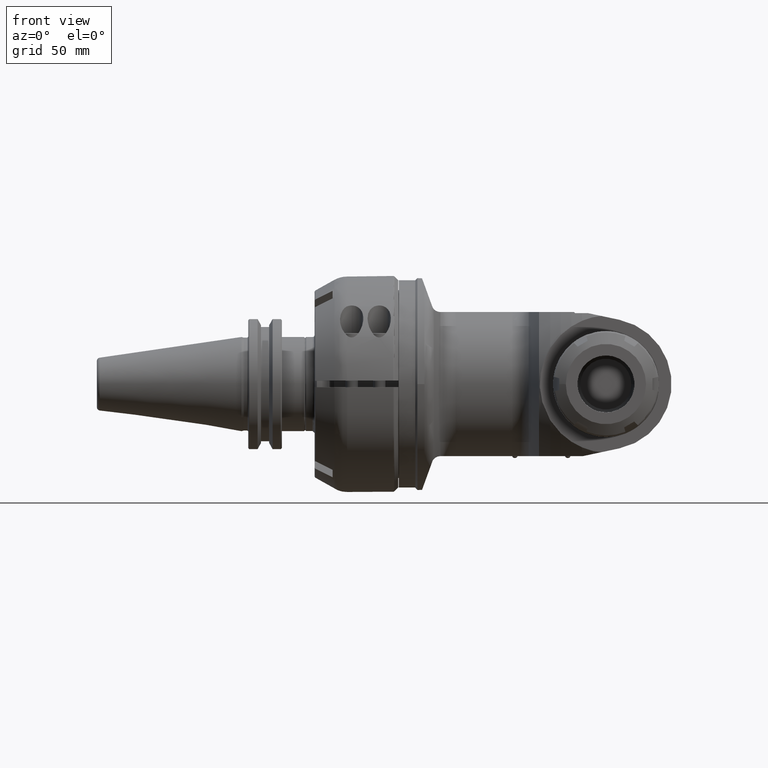
[diagram: clean part render]
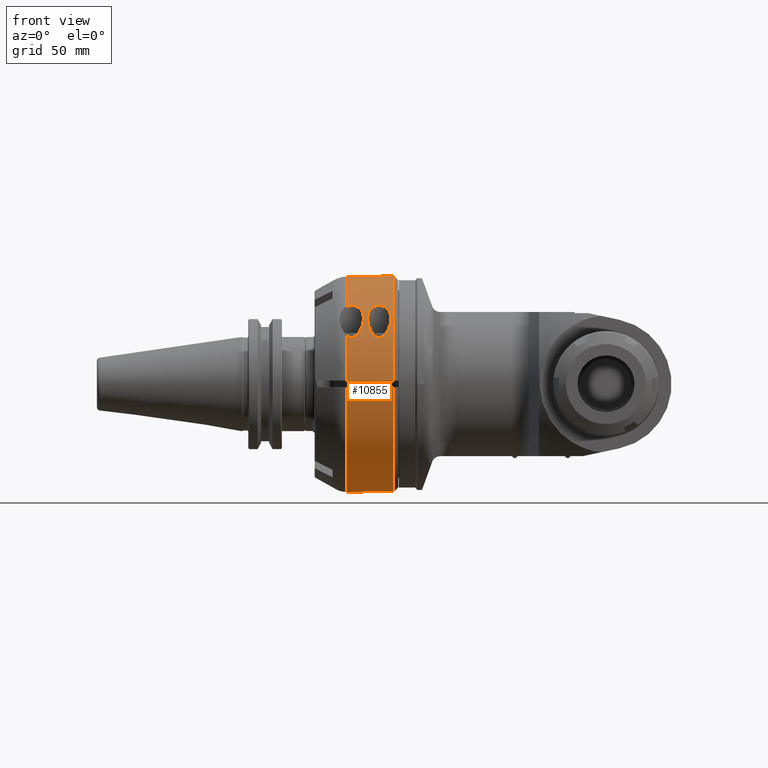
[diagram: same view with one face highlighted and labeled with its STEP entity id]
A machine part, front view. The second image highlights one B-rep face of the part: STEP entity #10855.
In plain terms, the highlighted cylindrical surface (partial cylindrical patch) has radius 51 mm, axis along (1, 0, 0).
Its self-contained STEP definition (entity closure, byte-faithful):
#51=B_SPLINE_CURVE_WITH_KNOTS('',3,(#16694,#16695,#16696,#16697,#16698,
#16699),.UNSPECIFIED.,.F.,.F.,(4,2,4),(-0.220144328878826,-0.201175489980687,
0.),.UNSPECIFIED.);
#52=B_SPLINE_CURVE_WITH_KNOTS('',3,(#16701,#16702,#16703,#16704,#16705,
#16706,#16707,#16708,#16709,#16710,#16711,#16712,#16713,#16714,#16715,#16716,
#16717,#16718,#16719,#16720,#16721,#16722,#16723,#16724,#16725,#16726),
 .UNSPECIFIED.,.F.,.F.,(4,2,2,2,2,2,2,2,2,2,2,2,4),(0.,0.201175489980686,
0.402350979961373,0.726790310303928,1.05122964064648,1.4474368744455,1.84364410824452,
2.06341028648597,2.17329337560669,2.28317646472742,2.39305955384814,2.50294264296886,
2.52975105248747),.UNSPECIFIED.);
#53=B_SPLINE_CURVE_WITH_KNOTS('',3,(#16737,#16738,#16739,#16740,#16741,
#16742,#16743,#16744,#16745,#16746,#16747,#16748,#16749,#16750,#16751,#16752,
#16753,#16754,#16755,#16756,#16757,#16758,#16759,#16760,#16761,#16762,#16763,
#16764,#16765,#16766,#16767,#16768,#16769,#16770,#16771,#16772,#16773,#16774),
 .UNSPECIFIED.,.T.,.F.,(4,2,2,2,2,2,2,2,2,2,2,2,2,2,2,2,2,2,4),(-4.56635292945483,
-4.45646984033411,-4.34658675121339,-4.12682057297194,-3.73061333917292,
-3.3344061053739,-3.00996677503134,-2.68552744468879,-2.4843519547081,-2.28317646472742,
-2.08200097474673,-1.88082548476604,-1.55638615442349,-1.23194682408093,
-0.835739590281914,-0.439532356482894,-0.219766178241447,-0.109883089120723,
0.),.UNSPECIFIED.);
#303=ELLIPSE('',#11620,144.249783362042,51.);
#304=ELLIPSE('',#11621,144.249783362042,51.);
#634=LINE('',#16377,#1308);
#644=LINE('',#16447,#1318);
#660=LINE('',#16627,#1334);
#661=LINE('',#16688,#1335);
#662=LINE('',#16690,#1336);
#663=LINE('',#16735,#1337);
#1308=VECTOR('',#12980,21.74606325158);
#1318=VECTOR('',#13028,21.74606856517);
#1334=VECTOR('',#13100,18.52539489666);
#1335=VECTOR('',#13113,0.6348591411298);
#1336=VECTOR('',#13114,18.52539489666);
#1337=VECTOR('',#13127,0.6348591411298);
#1959=CYLINDRICAL_SURFACE('',#11613,51.);
#2182=FACE_BOUND('',#2969,.T.);
#2290=FACE_OUTER_BOUND('',#2968,.T.);
#2968=EDGE_LOOP('',(#7325,#7326,#7327,#7328,#7329,#7330,#7331,#7332,#7333,
#7334,#7335,#7336,#7337,#7338,#7339,#7340,#7341,#7342));
#2969=EDGE_LOOP('',(#7343));
#3742=CIRCLE('',#11612,51.);
#3743=CIRCLE('',#11614,51.);
#3744=CIRCLE('',#11615,51.);
#3745=CIRCLE('',#11616,51.);
#3746=CIRCLE('',#11617,51.);
#3747=CIRCLE('',#11618,51.);
#3748=CIRCLE('',#11619,51.);
#3749=CIRCLE('',#11622,51.);
#4349=VERTEX_POINT('',#16367);
#4350=VERTEX_POINT('',#16376);
#4368=VERTEX_POINT('',#16437);
#4369=VERTEX_POINT('',#16446);
#4403=VERTEX_POINT('',#16624);
#4404=VERTEX_POINT('',#16626);
#4405=VERTEX_POINT('',#16680);
#4406=VERTEX_POINT('',#16681);
#4407=VERTEX_POINT('',#16683);
#4408=VERTEX_POINT('',#16685);
#4409=VERTEX_POINT('',#16687);
#4410=VERTEX_POINT('',#16689);
#4411=VERTEX_POINT('',#16691);
#4412=VERTEX_POINT('',#16693);
#4413=VERTEX_POINT('',#16700);
#4414=VERTEX_POINT('',#16728);
#4415=VERTEX_POINT('',#16730);
#4416=VERTEX_POINT('',#16732);
#4417=VERTEX_POINT('',#16736);
#5477=EDGE_CURVE('',#4350,#4349,#634,.T.);
#5504=EDGE_CURVE('',#4369,#4368,#644,.T.);
#5547=EDGE_CURVE('',#4404,#4403,#660,.T.);
#5549=EDGE_CURVE('',#4404,#4349,#3742,.T.);
#5550=EDGE_CURVE('',#4405,#4406,#3743,.T.);
#5551=EDGE_CURVE('',#4407,#4405,#3744,.T.);
#5552=EDGE_CURVE('',#4408,#4407,#3745,.T.);
#5553=EDGE_CURVE('',#4408,#4409,#661,.T.);
#5554=EDGE_CURVE('',#4410,#4409,#662,.T.);
#5555=EDGE_CURVE('',#4411,#4410,#3746,.T.);
#5556=EDGE_CURVE('',#4411,#4412,#51,.T.);
#5557=EDGE_CURVE('',#4412,#4413,#52,.T.);
#5558=EDGE_CURVE('',#4369,#4413,#3747,.T.);
#5559=EDGE_CURVE('',#4414,#4368,#3748,.T.);
#5560=EDGE_CURVE('',#4415,#4414,#303,.T.);
#5561=EDGE_CURVE('',#4416,#4415,#304,.T.);
#5562=EDGE_CURVE('',#4350,#4416,#3749,.T.);
#5563=EDGE_CURVE('',#4403,#4406,#663,.T.);
#5564=EDGE_CURVE('',#4417,#4417,#53,.T.);
#7325=ORIENTED_EDGE('',*,*,#5550,.F.);
#7326=ORIENTED_EDGE('',*,*,#5551,.F.);
#7327=ORIENTED_EDGE('',*,*,#5552,.F.);
#7328=ORIENTED_EDGE('',*,*,#5553,.T.);
#7329=ORIENTED_EDGE('',*,*,#5554,.F.);
#7330=ORIENTED_EDGE('',*,*,#5555,.F.);
#7331=ORIENTED_EDGE('',*,*,#5556,.T.);
#7332=ORIENTED_EDGE('',*,*,#5557,.T.);
#7333=ORIENTED_EDGE('',*,*,#5558,.F.);
#7334=ORIENTED_EDGE('',*,*,#5504,.T.);
#7335=ORIENTED_EDGE('',*,*,#5559,.F.);
#7336=ORIENTED_EDGE('',*,*,#5560,.F.);
#7337=ORIENTED_EDGE('',*,*,#5561,.F.);
#7338=ORIENTED_EDGE('',*,*,#5562,.F.);
#7339=ORIENTED_EDGE('',*,*,#5477,.T.);
#7340=ORIENTED_EDGE('',*,*,#5549,.F.);
#7341=ORIENTED_EDGE('',*,*,#5547,.T.);
#7342=ORIENTED_EDGE('',*,*,#5563,.T.);
#7343=ORIENTED_EDGE('',*,*,#5564,.T.);
#10855=ADVANCED_FACE('',(#2290,#2182),#1959,.T.);
#11612=AXIS2_PLACEMENT_3D('',#16678,#13103,#13104);
#11613=AXIS2_PLACEMENT_3D('',#16679,#13105,#13106);
#11614=AXIS2_PLACEMENT_3D('',#16682,#13107,#13108);
#11615=AXIS2_PLACEMENT_3D('',#16684,#13109,#13110);
#11616=AXIS2_PLACEMENT_3D('',#16686,#13111,#13112);
#11617=AXIS2_PLACEMENT_3D('',#16692,#13115,#13116);
#11618=AXIS2_PLACEMENT_3D('',#16727,#13117,#13118);
#11619=AXIS2_PLACEMENT_3D('',#16729,#13119,#13120);
#11620=AXIS2_PLACEMENT_3D('',#16731,#13121,#13122);
#11621=AXIS2_PLACEMENT_3D('',#16733,#13123,#13124);
#11622=AXIS2_PLACEMENT_3D('',#16734,#13125,#13126);
#12980=DIRECTION('',(-1.,-1.462479987387E-11,4.970251645951E-10));
#13028=DIRECTION('',(1.,3.747115976057E-11,1.273469652131E-9));
#13100=DIRECTION('',(1.,-3.835506555859E-14,-5.561484505995E-14));
#13103=DIRECTION('center_axis',(-1.,0.,0.));
#13104=DIRECTION('ref_axis',(0.,0.823529411764684,-0.567273574176089));
#13105=DIRECTION('center_axis',(1.,0.,0.));
#13106=DIRECTION('ref_axis',(0.,1.,1.4663902280623E-10));
#13107=DIRECTION('center_axis',(-1.,0.,0.));
#13108=DIRECTION('ref_axis',(0.,0.835809470037146,-0.54901960784313));
#13109=DIRECTION('center_axis',(-1.,0.,0.));
#13110=DIRECTION('ref_axis',(0.,0.835809470037146,0.54901960784313));
#13111=DIRECTION('center_axis',(-1.,0.,0.));
#13112=DIRECTION('ref_axis',(0.,0.823529411764684,0.567273574176089));
#13113=DIRECTION('',(-1.,-2.238426415332E-14,7.27488584983E-14));
#13114=DIRECTION('',(1.,-3.7971514903E-14,5.561484505995E-14));
#13115=DIRECTION('center_axis',(-1.,0.,0.));
#13116=DIRECTION('ref_axis',(0.,-0.694941301235422,0.719066469693323));
#13117=DIRECTION('center_axis',(-1.,0.,0.));
#13118=DIRECTION('ref_axis',(0.,-0.999567380468613,0.0294117647058804));
#13119=DIRECTION('center_axis',(1.,0.,0.));
#13120=DIRECTION('ref_axis',(0.,-0.0186331132687895,0.999826388474475));
#13121=DIRECTION('center_axis',(0.353553390593307,0.707106781186515,0.612372435695813));
#13122=DIRECTION('ref_axis',(0.935414346693472,-0.267261241912441,-0.23145502494317));
#13123=DIRECTION('center_axis',(0.353553390593307,-0.707106781186515,0.612372435695813));
#13124=DIRECTION('ref_axis',(-0.935414346693472,-0.267261241912441,0.23145502494317));
#13125=DIRECTION('center_axis',(1.,0.,0.));
#13126=DIRECTION('ref_axis',(0.,1.,0.));
#13127=DIRECTION('',(1.,-2.238426415332E-14,-1.119213207666E-14));
#16367=CARTESIAN_POINT('',(155.902842951806,-50.9779364044794,-1.49999998023586));
#16376=CARTESIAN_POINT('',(177.648883445127,-50.9779364043204,-1.49999998564002));
#16377=CARTESIAN_POINT('',(177.6488908532,-50.97793640474,-1.49999997128));
#16437=CARTESIAN_POINT('',(177.648883444621,-50.9779364042926,1.49999998660699));
#16446=CARTESIAN_POINT('',(155.9028429622,-50.9779364046901,1.49999997309681));
#16447=CARTESIAN_POINT('',(155.9028217902,-50.9779364055,1.499999945521));
#16624=CARTESIAN_POINT('',(174.4282378589,42.,-28.93095228298));
#16626=CARTESIAN_POINT('',(155.9028429622,42.,-28.93095228298));
#16627=CARTESIAN_POINT('',(155.9028429622,42.,-28.93095228298));
#16678=CARTESIAN_POINT('Origin',(155.9028429622,0.,0.));
#16679=CARTESIAN_POINT('Origin',(149.063097,0.,0.));
#16680=CARTESIAN_POINT('',(175.063097,42.62628297189,-28.));
#16681=CARTESIAN_POINT('',(175.063097,42.,-28.93095228298));
#16682=CARTESIAN_POINT('Origin',(175.063097,0.,0.));
#16683=CARTESIAN_POINT('',(175.063097,42.62628297189,28.));
#16684=CARTESIAN_POINT('Origin',(175.063097,0.,0.));
#16685=CARTESIAN_POINT('',(175.063097,42.,28.93095228298));
#16686=CARTESIAN_POINT('Origin',(175.063097,0.,0.));
#16687=CARTESIAN_POINT('',(174.4282378589,42.,28.93095228298));
#16688=CARTESIAN_POINT('',(175.063097,42.,28.93095228298));
#16689=CARTESIAN_POINT('',(155.9028429622,42.,28.93095228298));
#16690=CARTESIAN_POINT('',(155.9028429622,42.,28.93095228298));
#16691=CARTESIAN_POINT('',(155.9028429621,-35.44200636301,36.67238995435));
#16692=CARTESIAN_POINT('Origin',(155.9028429622,0.,0.));
#16693=CARTESIAN_POINT('',(158.063097,-35.0000002827,37.094473715245));
#16694=CARTESIAN_POINT('Ctrl Pts',(155.902842962091,-35.4420063630023,36.6723899543635));
#16695=CARTESIAN_POINT('Ctrl Pts',(155.960066241056,-35.4175664721268,36.6960098703003));
#16696=CARTESIAN_POINT('Ctrl Pts',(156.017968423946,-35.3939854762379,36.7187524665202));
#16697=CARTESIAN_POINT('Ctrl Pts',(156.697134117794,-35.1309085087689,36.9720249281091));
#16698=CARTESIAN_POINT('Ctrl Pts',(157.392512033398,-35.0000002827,37.094473715245));
#16699=CARTESIAN_POINT('Ctrl Pts',(158.063097,-35.0000002827,37.094473715245));
#16700=CARTESIAN_POINT('',(155.9028429622,-45.55799420242,22.92311419183));
#16701=CARTESIAN_POINT('Ctrl Pts',(158.063097,-35.0000002827,37.094473715245));
#16702=CARTESIAN_POINT('Ctrl Pts',(158.733681966602,-35.0000002827,37.094473715245));
#16703=CARTESIAN_POINT('Ctrl Pts',(159.429059882206,-35.1309085087689,36.9720249281091));
#16704=CARTESIAN_POINT('Ctrl Pts',(160.670350011584,-35.611726144206,36.509126684777));
#16705=CARTESIAN_POINT('Ctrl Pts',(161.217088242085,-35.9595700839234,36.1687494919773));
#16706=CARTESIAN_POINT('Ctrl Pts',(162.327305140609,-36.9109847334653,35.2033968586434));
#16707=CARTESIAN_POINT('Ctrl Pts',(162.82219848899,-37.6305186458188,34.4409934800642));
#16708=CARTESIAN_POINT('Ctrl Pts',(163.440260886259,-39.0967633186736,32.7670730175023));
#16709=CARTESIAN_POINT('Ctrl Pts',(163.563097,-39.8427250661917,31.8547771083538));
#16710=CARTESIAN_POINT('Ctrl Pts',(163.563097,-41.3026686740521,29.9471832487812));
#16711=CARTESIAN_POINT('Ctrl Pts',(163.381737543995,-42.1275628033903,28.778013547493));
#16712=CARTESIAN_POINT('Ctrl Pts',(162.665931905328,-43.6226298537565,26.456979520871));
#16713=CARTESIAN_POINT('Ctrl Pts',(162.139142507435,-44.2943690865695,25.3037695427295));
#16714=CARTESIAN_POINT('Ctrl Pts',(161.070663138843,-45.1302050030023,23.7624895598246));
#16715=CARTESIAN_POINT('Ctrl Pts',(160.588286549568,-45.4238805293447,23.1928172782629));
#16716=CARTESIAN_POINT('Ctrl Pts',(159.734148909462,-45.7488459255632,22.5411184273515));
#16717=CARTESIAN_POINT('Ctrl Pts',(159.428008510223,-45.8382767855729,22.3578474169696));
#16718=CARTESIAN_POINT('Ctrl Pts',(158.775593272837,-45.9637780827712,22.0986788135919));
#16719=CARTESIAN_POINT('Ctrl Pts',(158.429373963736,-46.0000002827,22.0227149550549));
#16720=CARTESIAN_POINT('Ctrl Pts',(157.696820036264,-46.0000002827,22.0227149550549));
#16721=CARTESIAN_POINT('Ctrl Pts',(157.350600727163,-45.9637780827712,22.0986788135918));
#16722=CARTESIAN_POINT('Ctrl Pts',(156.698185489777,-45.8382767855729,22.3578474169696));
#16723=CARTESIAN_POINT('Ctrl Pts',(156.392045090538,-45.7488459255632,22.5411184273514));
#16724=CARTESIAN_POINT('Ctrl Pts',(156.037870622005,-45.6140966286196,22.8113501597179));
#16725=CARTESIAN_POINT('Ctrl Pts',(155.969697861046,-45.5865477292915,22.8663661688304));
#16726=CARTESIAN_POINT('Ctrl Pts',(155.902842962179,-45.5579942024351,22.9231141918128));
#16727=CARTESIAN_POINT('Origin',(155.9028429622,0.,0.));
#16728=CARTESIAN_POINT('',(177.6488834376,-0.9502887767138,50.9911458122));
#16729=CARTESIAN_POINT('Origin',(177.6488834376,0.,0.));
#16730=CARTESIAN_POINT('',(175.7329699811,0.,51.));
#16731=CARTESIAN_POINT('Origin',(264.067561167047,0.,0.));
#16732=CARTESIAN_POINT('',(177.6488834376,0.9502887767115,50.9911458122));
#16733=CARTESIAN_POINT('Origin',(264.067561167129,0.,0.));
#16734=CARTESIAN_POINT('Origin',(177.6488834376,0.,0.));
#16735=CARTESIAN_POINT('',(174.4282378589,42.,-28.93095228298));
#16736=CARTESIAN_POINT('',(165.563097,-40.5000002827,30.99596711028));
#16737=CARTESIAN_POINT('Ctrl Pts',(171.063097,-46.0000002827,22.0227149550549));
#16738=CARTESIAN_POINT('Ctrl Pts',(170.696820036264,-46.0000002827,22.0227149550549));
#16739=CARTESIAN_POINT('Ctrl Pts',(170.350600727163,-45.9637780827712,22.0986788135919));
#16740=CARTESIAN_POINT('Ctrl Pts',(169.698185489777,-45.8382767855729,22.3578474169696));
#16741=CARTESIAN_POINT('Ctrl Pts',(169.392045090538,-45.7488459255632,22.5411184273515));
#16742=CARTESIAN_POINT('Ctrl Pts',(168.537907450432,-45.4238805293447,23.1928172782629));
#16743=CARTESIAN_POINT('Ctrl Pts',(168.055530861157,-45.1302050030023,23.7624895598246));
#16744=CARTESIAN_POINT('Ctrl Pts',(166.987051492565,-44.2943690865695,25.3037695427295));
#16745=CARTESIAN_POINT('Ctrl Pts',(166.460262094672,-43.6226298537565,26.456979520871));
#16746=CARTESIAN_POINT('Ctrl Pts',(165.744456456005,-42.1275628033903,28.778013547493));
#16747=CARTESIAN_POINT('Ctrl Pts',(165.563097,-41.3026686740521,29.9471832487812));
#16748=CARTESIAN_POINT('Ctrl Pts',(165.563097,-39.8427250661917,31.8547771083538));
#16749=CARTESIAN_POINT('Ctrl Pts',(165.685933113741,-39.0967633186736,32.7670730175023));
#16750=CARTESIAN_POINT('Ctrl Pts',(166.30399551101,-37.6305186458188,34.4409934800642));
#16751=CARTESIAN_POINT('Ctrl Pts',(166.798888859391,-36.9109847334653,35.2033968586434));
#16752=CARTESIAN_POINT('Ctrl Pts',(167.909105757915,-35.9595700839234,36.1687494919773));
#16753=CARTESIAN_POINT('Ctrl Pts',(168.455843988416,-35.611726144206,36.509126684777));
#16754=CARTESIAN_POINT('Ctrl Pts',(169.697134117794,-35.1309085087689,36.9720249281091));
#16755=CARTESIAN_POINT('Ctrl Pts',(170.392512033398,-35.0000002827,37.094473715245));
#16756=CARTESIAN_POINT('Ctrl Pts',(171.733681966602,-35.0000002827,37.094473715245));
#16757=CARTESIAN_POINT('Ctrl Pts',(172.429059882206,-35.1309085087689,36.9720249281091));
#16758=CARTESIAN_POINT('Ctrl Pts',(173.670350011584,-35.611726144206,36.509126684777));
#16759=CARTESIAN_POINT('Ctrl Pts',(174.217088242085,-35.9595700839234,36.1687494919773));
#16760=CARTESIAN_POINT('Ctrl Pts',(175.327305140609,-36.9109847334653,35.2033968586434));
#16761=CARTESIAN_POINT('Ctrl Pts',(175.82219848899,-37.6305186458188,34.4409934800642));
#16762=CARTESIAN_POINT('Ctrl Pts',(176.440260886259,-39.0967633186736,32.7670730175023));
#16763=CARTESIAN_POINT('Ctrl Pts',(176.563097,-39.8427250661916,31.8547771083538));
#16764=CARTESIAN_POINT('Ctrl Pts',(176.563097,-41.3026686740521,29.9471832487812));
#16765=CARTESIAN_POINT('Ctrl Pts',(176.381737543995,-42.1275628033903,28.778013547493));
#16766=CARTESIAN_POINT('Ctrl Pts',(175.665931905328,-43.6226298537565,26.456979520871));
#16767=CARTESIAN_POINT('Ctrl Pts',(175.139142507435,-44.2943690865695,25.3037695427295));
#16768=CARTESIAN_POINT('Ctrl Pts',(174.070663138843,-45.1302050030023,23.7624895598246));
#16769=CARTESIAN_POINT('Ctrl Pts',(173.588286549568,-45.4238805293447,23.1928172782629));
#16770=CARTESIAN_POINT('Ctrl Pts',(172.734148909462,-45.7488459255632,22.5411184273515));
#16771=CARTESIAN_POINT('Ctrl Pts',(172.428008510223,-45.8382767855729,22.3578474169696));
#16772=CARTESIAN_POINT('Ctrl Pts',(171.775593272837,-45.9637780827712,22.0986788135919));
#16773=CARTESIAN_POINT('Ctrl Pts',(171.429373963736,-46.0000002827,22.0227149550549));
#16774=CARTESIAN_POINT('Ctrl Pts',(171.063097,-46.0000002827,22.0227149550549));